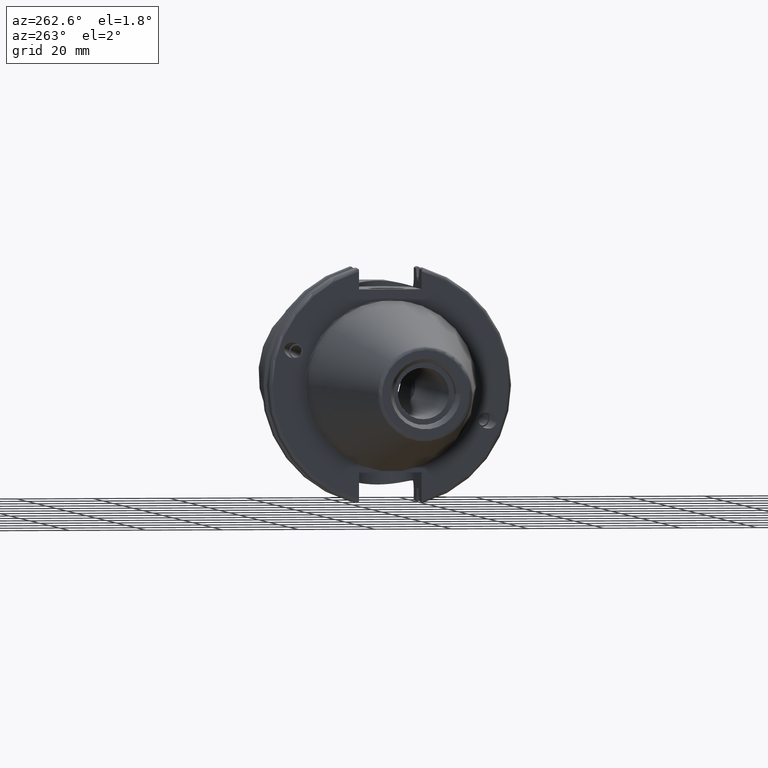
[diagram: clean part render]
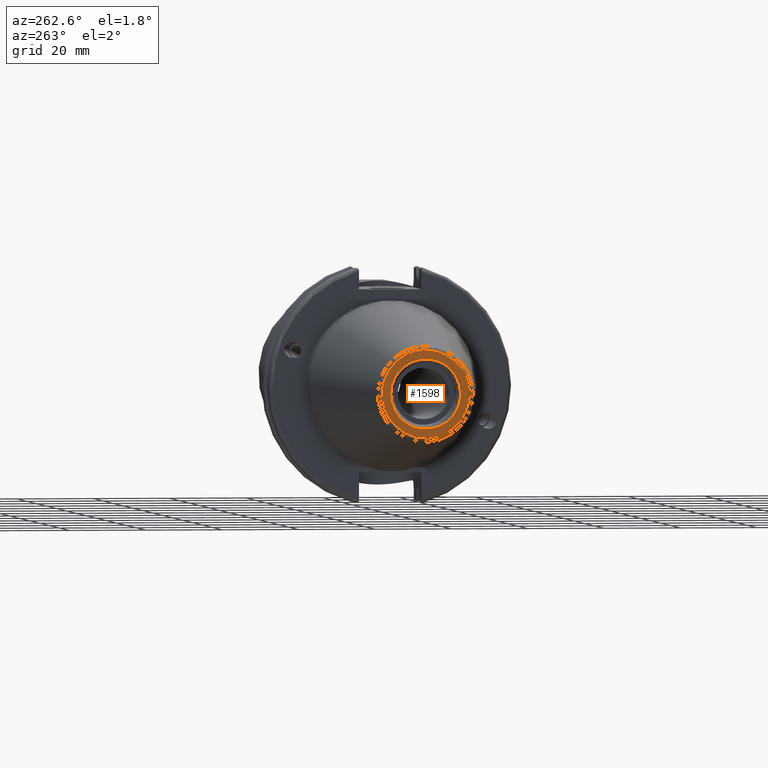
[diagram: same view with one face highlighted and labeled with its STEP entity id]
A machine part, auxiliary view. The second image highlights one B-rep face of the part: STEP entity #1598.
In plain terms, the highlighted planar face has unit normal (-1, 0, 0).
Its self-contained STEP definition (entity closure, byte-faithful):
#303=FACE_BOUND('',#534,.T.);
#349=PLANE('',#1802);
#429=FACE_OUTER_BOUND('',#533,.T.);
#533=EDGE_LOOP('',(#1428));
#534=EDGE_LOOP('',(#1429));
#627=CIRCLE('',#1801,11.4071305970304);
#628=CIRCLE('',#1803,9.15);
#786=VERTEX_POINT('',#3122);
#787=VERTEX_POINT('',#3126);
#1012=EDGE_CURVE('',#786,#786,#627,.T.);
#1013=EDGE_CURVE('',#787,#787,#628,.T.);
#1428=ORIENTED_EDGE('',*,*,#1012,.F.);
#1429=ORIENTED_EDGE('',*,*,#1013,.T.);
#1598=ADVANCED_FACE('',(#429,#303),#349,.T.);
#1801=AXIS2_PLACEMENT_3D('',#3124,#2221,#2222);
#1802=AXIS2_PLACEMENT_3D('',#3125,#2223,#2224);
#1803=AXIS2_PLACEMENT_3D('',#3127,#2225,#2226);
#2221=DIRECTION('center_axis',(1.,0.,0.));
#2222=DIRECTION('ref_axis',(0.,-1.,1.83697019872103E-16));
#2223=DIRECTION('center_axis',(-1.,0.,0.));
#2224=DIRECTION('ref_axis',(0.,0.,1.));
#2225=DIRECTION('center_axis',(1.,0.,0.));
#2226=DIRECTION('ref_axis',(0.,0.,-1.));
#3122=CARTESIAN_POINT('',(-68.25,-1.39697059731091E-15,11.4071305970304));
#3124=CARTESIAN_POINT('Origin',(-68.25,0.,0.));
#3125=CARTESIAN_POINT('Origin',(-68.25,12.271875,0.));
#3126=CARTESIAN_POINT('',(-68.25,-9.15,-1.12055182121983E-15));
#3127=CARTESIAN_POINT('Origin',(-68.25,0.,0.));